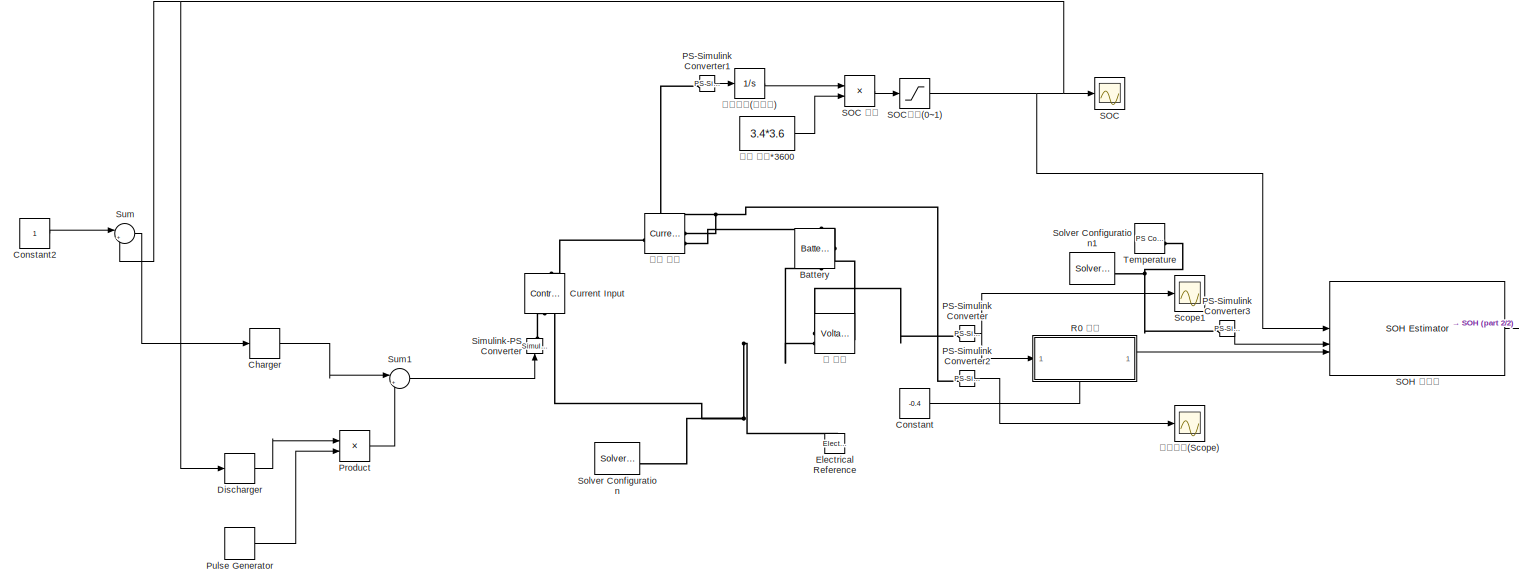
[diagram: root canvas - part 1/2, most of the canvas]
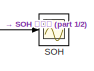
[diagram: root canvas - part 2/2, middle right region]
MODEL slx_f30fc69b1968
KIND model
CONFIG AbsTol = auto
CONFIG EnableMultiTasking = off
CONFIG FixedStep = auto
CONFIG MaxStep = auto
CONFIG MinStep = auto
CONFIG RelTol = 1e-3
CONFIG SampleTimeConstraint = Unconstrained
CONFIG SolverName = VariableStepAuto
CONFIG StartTime = 0.0
CONFIG StopTime = 100
BLOCK [Reference] Battery  REF=batt_lib/Cells/Battery Equivalent
Circuit
  NameLocation = left
  SourceBlock = batt_lib/Cells/Battery Equivalent\nCircuit
  SourceType = Battery Equivalent\nCircuit
BLOCK [Relay] Charger
  OffSwitchValue = 0
  OnOutputValue = 0.4
  OnSwitchValue = 0.9
BLOCK [Constant] Constant
  Value = -0.4
BLOCK [Constant] Constant2
BLOCK [Reference] Current Input  REF=fl_lib/Electrical/Electrical Sources/Controlled Current
Source
  NameLocation = right
  SourceBlock = fl_lib/Electrical/Electrical Sources/Controlled Current\nSource
  SourceType = Controlled Current\nSource
BLOCK [Relay] Discharger
  OffSwitchValue = 0.1
  OnOutputValue = -0.4
  OnSwitchValue = 1
BLOCK [Reference] Electrical Reference  REF=fl_lib/Electrical/Electrical Elements/Electrical Reference
  NameLocation = right
  SourceBlock = fl_lib/Electrical/Electrical Elements/Electrical Reference
  SourceType = Electrical Reference
BLOCK [Reference] PS-Simulink Converter  REF=nesl_utility/PS-Simulink
Converter
  SourceBlock = nesl_utility/PS-Simulink\nConverter
  SourceType = PS-Simulink\nConverter
BLOCK [Reference] PS-Simulink Converter1  REF=nesl_utility/PS-Simulink
Converter
  SourceBlock = nesl_utility/PS-Simulink\nConverter
  SourceType = PS-Simulink\nConverter
BLOCK [Reference] PS-Simulink Converter2  REF=nesl_utility/PS-Simulink
Converter
  SourceBlock = nesl_utility/PS-Simulink\nConverter
  SourceType = PS-Simulink\nConverter
BLOCK [Reference] PS-Simulink Converter3  REF=nesl_utility/PS-Simulink
Converter
  SourceBlock = nesl_utility/PS-Simulink\nConverter
  SourceType = PS-Simulink\nConverter
BLOCK [Product] Product
BLOCK [DiscretePulseGenerator] Pulse Generator
  PulseType = Time based
  PulseWidth = 50
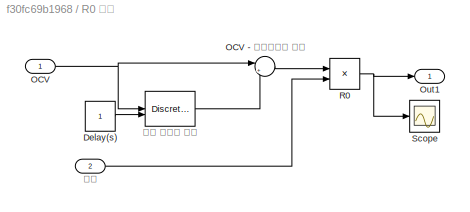
BLOCK [SubSystem] R0 계산
  PortSchema = {"entries":[{"content":{"sides":[{"content":{"connectorIds":["In1"]},"type":"ConnectorPlacement.EquallySpacedRectSide","uuid":"284c04bd-4081-43f1-9d69-2474095be116"},{"content":{"connectorIds":["Out1"],"side":"RIGHT"},"type":"ConnectorPlacement.EquallySpacedRectSide","uuid":"f0711672-b87d-4fdd-b10d-18b7afa3813d"},{"content":{"side":"TOP"},"type":"ConnectorPlacement.EquallySpacedRectSide","uuid":"9...<+371ch>
BLOCK [Constant] R0 계산/Delay(s)
BLOCK [Inport] R0 계산/OCV
BLOCK [Sum] R0 계산/OCV - 전압강하시 전압
  Inputs = |+-
BLOCK [Outport] R0 계산/Out1
BLOCK [Product] R0 계산/R0
  Inputs = */
BLOCK [Scope] R0 계산/Scope
  ActiveDisplayYMaximum = 0.52517111589319021
  ActiveDisplayYMinimum = -0.31375855792624469
  DataLoggingVariableName = ScopeData4
  Floating = off
  GraphicalSettings = {"Style":{"BackgroundColor":[0.12941176470588237,0.12941176470588237,0.12941176470588237],"AxesColor":[0.07058823529411765,0.07058823529411765,0.07058823529411765],"LabelsColor":[0.8509803921568627,0.8509803921568627,0.8509803921568627],"PreserveColors":false,"Visible":[true],"LineStyle":["-"],"LineWidth":[1.5],"BarWidth":[0.9],"LineColor":["auto"],"LineFaceAlpha":[1],"LineEdgeAlpha":[1],"Marker":...<+1957ch>
  MultipleDisplayCache = [{"MaxYLimMag":10,"MaxYLimReal":0.52517111589319021,"MinYLimMag":0,"MinYLimReal":-0.31375855792624469,"PlotAsMagnitudePhase":false,"ShowGrid":true,"ShowLegend":false,"Title":"%<SignalLabel>","YLabel":""}]
  NumInputPorts = 1
  ScopeFrameLocation = window
  Visible = on
  WasSavedAsWebScope = on
  WindowPosition = [305.000000,187.000000,560.000000,511.000000,]
BLOCK [Inport] R0 계산/전류
  Port = 2
BLOCK [Reference] R0 계산/전압 강하시 전압  REF=spsDiscreteVariableTimeDelayLib/Discrete Variable
Time Delay
  LibrarySourceBlock = sps_lib/Control/Discrete Variable\nTime Delay
  SourceBlock = spsDiscreteVariableTimeDelayLib/Discrete Variable\nTime Delay
  SourceType = Discrete Variable Time Delay
BLOCK [Scope] SOC
  ActiveDisplayYMaximum = 0.6794811319877232
  ActiveDisplayYMinimum = -1.9003374212908724
  Floating = off
  GraphicalSettings = {"Style":{"BackgroundColor":[0.12941176470588237,0.12941176470588237,0.12941176470588237],"AxesColor":[0.07058823529411765,0.07058823529411765,0.07058823529411765],"LabelsColor":[0.8509803921568627,0.8509803921568627,0.8509803921568627],"PreserveColors":false,"Visible":[true],"LineStyle":["-"],"LineWidth":[1.5],"BarWidth":[0.9],"LineColor":["auto"],"LineFaceAlpha":[1],"LineEdgeAlpha":[1],"Marker":...<+2043ch>
  MultipleDisplayCache = [{"MaxYLimMag":0.54953678004289375,"MaxYLimReal":0.6794811319877232,"MinYLimMag":0.054168979613956295,"MinYLimReal":-1.9003374212908724,"PlotAsMagnitudePhase":false,"ShowGrid":true,"ShowLegend":false,"Title":"%<SignalLabel>","YLabel":""}]
  NumInputPorts = 1
  ScopeFrameLocation = window
  WasSavedAsWebScope = on
  WindowPosition = [0.000000,36.000000,1536.000000,793.000000,]
BLOCK [Product] SOC 계산
  Inputs = */
BLOCK [Saturate] SOC계산(0~1)
  LowerLimit = 0
  UpperLimit = 1
BLOCK [Scope] SOH
  ActiveDisplayYMaximum = 1.7206339658692529
  ActiveDisplayYMinimum = -0.8984015366778646
  DataLoggingVariableName = ScopeData3
  Floating = off
  GraphicalSettings = {"Style":{"BackgroundColor":[0.12941176470588237,0.12941176470588237,0.12941176470588237],"AxesColor":[0.07058823529411765,0.07058823529411765,0.07058823529411765],"LabelsColor":[0.8509803921568627,0.8509803921568627,0.8509803921568627],"PreserveColors":false,"Visible":[true],"LineStyle":["-"],"LineWidth":[1.5],"BarWidth":[0.9],"LineColor":["auto"],"LineFaceAlpha":[1],"LineEdgeAlpha":[1],"Marker":...<+1967ch>
  MultipleDisplayCache = [{"MaxYLimMag":1,"MaxYLimReal":1.7206339658692529,"MinYLimMag":0,"MinYLimReal":-0.8984015366778646,"PlotAsMagnitudePhase":false,"ShowGrid":true,"ShowLegend":false,"Title":"%<SignalLabel>","YLabel":""}]
  NumInputPorts = 1
  ScopeFrameLocation = window
  Visible = on
  WasSavedAsWebScope = on
  WindowPosition = [-2.000000,22.000000,1536.000000,793.000000,]
BLOCK [Reference] SOH  계산식  REF=BatteryEstimators/SOH Estimator
  LibrarySourceBlock = batt_sl_lib/Estimators/SOH Estimator
  SourceBlock = BatteryEstimators/SOH Estimator
  SourceType = SOH Estimator
BLOCK [Scope] Scope1
  ActiveDisplayYMaximum = 4.2293088325990871
  ActiveDisplayYMinimum = 3.9522947930051937
  DataLoggingVariableName = ScopeData1
  Floating = off
  GraphicalSettings = {"AxesScalingProperties":{"AlignXAxis":"Center","AlignYAxis":"Center","AutoScaleXAxisLimits":false,"AxesScaling":"Manual","AxesScalingNumUpdates":10,"ExpandOnly":true,"ScaleAxesLimitsAtStop":false,"XAxisDataRange":100,"YAxisDataRange":80},"DisplayProperties":{"ColorOrder":["auto","auto","auto","auto","auto","auto","auto","auto","auto","auto","auto","auto","auto","auto","auto","auto","auto","auto",...<+2006ch>
  MultipleDisplayCache = [{"MaxYLimMag":1.125,"MaxYLimReal":4.2293088325990871,"MinYLimMag":0,"MinYLimReal":3.9522947930051937,"PlotAsMagnitudePhase":false,"ShowGrid":true,"ShowLegend":false,"Title":"%<SignalLabel>","YLabel":""}]
  NumInputPorts = 1
  ScopeFrameLocation = window
  Visible = on
  WasSavedAsWebScope = on
  WindowPosition = [0.000000,36.000000,1536.000000,793.000000,]
BLOCK [Reference] Simulink-PS Converter  REF=nesl_utility/Simulink-PS
Converter
  NameLocation = right
  SourceBlock = nesl_utility/Simulink-PS\nConverter
  SourceType = Simulink-PS\nConverter
BLOCK [Reference] Solver Configuration  REF=nesl_utility/Solver
Configuration
  SourceBlock = nesl_utility/Solver\nConfiguration
  SourceType = Solver\nConfiguration
BLOCK [Reference] Solver Configuration1  REF=nesl_utility/Solver
Configuration
  SourceBlock = nesl_utility/Solver\nConfiguration
  SourceType = Solver\nConfiguration
BLOCK [Sum] Sum
  Inputs = |+-
BLOCK [Sum] Sum1
  Inputs = |++
BLOCK [Reference] Temperature  REF=fl_lib/Physical Signals/Sources/PS Constant
  SourceBlock = fl_lib/Physical Signals/Sources/PS Constant
  SourceType = PS Constant
BLOCK [Constant] 공칭 용량*3600
  Value = 3.4*3.6
BLOCK [Reference] 셀 전압  REF=fl_lib/Electrical/Electrical Sensors/Voltage Sensor
  SourceBlock = fl_lib/Electrical/Electrical Sensors/Voltage Sensor
  SourceType = Voltage Sensor
BLOCK [Integrator] 전류적산(적분기)
  InitialCondition = 0.34*3.6
BLOCK [Reference] 충전 전류  REF=fl_lib/Electrical/Electrical Sensors/Current Sensor
  SourceBlock = fl_lib/Electrical/Electrical Sensors/Current Sensor
  SourceType = Current Sensor
BLOCK [Scope] 충전전류(Scope)
  ActiveDisplayYMaximum = 1
  ActiveDisplayYMinimum = -1
  DataLoggingVariableName = ScopeData2
  Floating = off
  GraphicalSettings = {"Style":{"BackgroundColor":[0.12941176470588237,0.12941176470588237,0.12941176470588237],"AxesColor":[0.07058823529411765,0.07058823529411765,0.07058823529411765],"LabelsColor":[0.8509803921568627,0.8509803921568627,0.8509803921568627],"PreserveColors":false,"Visible":[true],"LineStyle":["-"],"LineWidth":[1.5],"BarWidth":[0.9],"LineColor":["auto"],"LineFaceAlpha":[1],"LineEdgeAlpha":[1],"Marker":...<+1927ch>
  MultipleDisplayCache = [{"MaxYLimMag":1,"MaxYLimReal":1,"MinYLimMag":0,"MinYLimReal":-1,"PlotAsMagnitudePhase":false,"ShowGrid":true,"ShowLegend":false,"Title":"%<SignalLabel>","YLabel":""}]
  NumInputPorts = 1
  ScopeFrameLocation = window
  WasSavedAsWebScope = on
  WindowPosition = [0.000000,36.000000,1536.000000,793.000000,]
LINE Charger:1 -> Sum1:1
LINE Constant2:1 -> Sum:1
LINE Constant:1 -> R0 계산:2
LINE Discharger:1 -> Product:1
LINE PS-Simulink Converter1:1 -> 전류적산(적분기):1
LINE PS-Simulink Converter2:1 -> 충전전류(Scope):1
LINE PS-Simulink Converter3:1 -> SOH  계산식:2
NET PS-Simulink Converter:1 -> R0 계산:1, Scope1:1
LINE Product:1 -> Sum1:2
LINE Pulse Generator:1 -> Product:2
LINE R0 계산/Delay(s):1 -> R0 계산/전압 강하시 전압:2
LINE R0 계산/OCV - 전압강하시 전압:1 -> R0 계산/R0:1
NET R0 계산/OCV:1 -> R0 계산/OCV - 전압강하시 전압:1, R0 계산/전압 강하시 전압:1
NET R0 계산/R0:1 -> R0 계산/Out1:1, R0 계산/Scope:1
LINE R0 계산/전류:1 -> R0 계산/R0:2
LINE R0 계산/전압 강하시 전압:1 -> R0 계산/OCV - 전압강하시 전압:2
LINE R0 계산:1 -> SOH  계산식:3
LINE SOC 계산:1 -> SOC계산(0~1):1
NET SOC계산(0~1):1 -> Discharger:1, SOC:1, SOH  계산식:1, Sum:2
LINE SOH  계산식:1 -> SOH:1
LINE Sum1:1 -> Simulink-PS Converter:1
LINE Sum:1 -> Charger:1
LINE 공칭 용량*3600:1 -> SOC 계산:2
LINE 전류적산(적분기):1 -> SOC 계산:1
PNET net1: Battery:LConn1 -- 셀 전압:LConn1 -- 충전 전류:RConn2
PNET net2: Battery:RConn1 -- Current Input:RConn2 -- Electrical Reference:LConn1 -- Solver Configuration:RConn1 -- 셀 전압:RConn2
PLINE Current Input:LConn1 -- 충전 전류:LConn1
PLINE Current Input:RConn1 -- Simulink-PS Converter:RConn1
PNET net3: PS-Simulink Converter1:LConn1 -- PS-Simulink Converter2:LConn1 -- 충전 전류:RConn1
PNET net4: PS-Simulink Converter3:LConn1 -- Solver Configuration1:RConn1 -- Temperature:RConn1
PLINE PS-Simulink Converter:LConn1 -- 셀 전압:RConn1
note: NET lines group one-source signal fan-out (src -> all destinations, sorted); 1:1 wires keep LINE; PNET lines group multi-terminal physical nets as a canonical sorted terminal list (undirected conserving connections); 2-terminal nets keep the pairwise PLINE form
